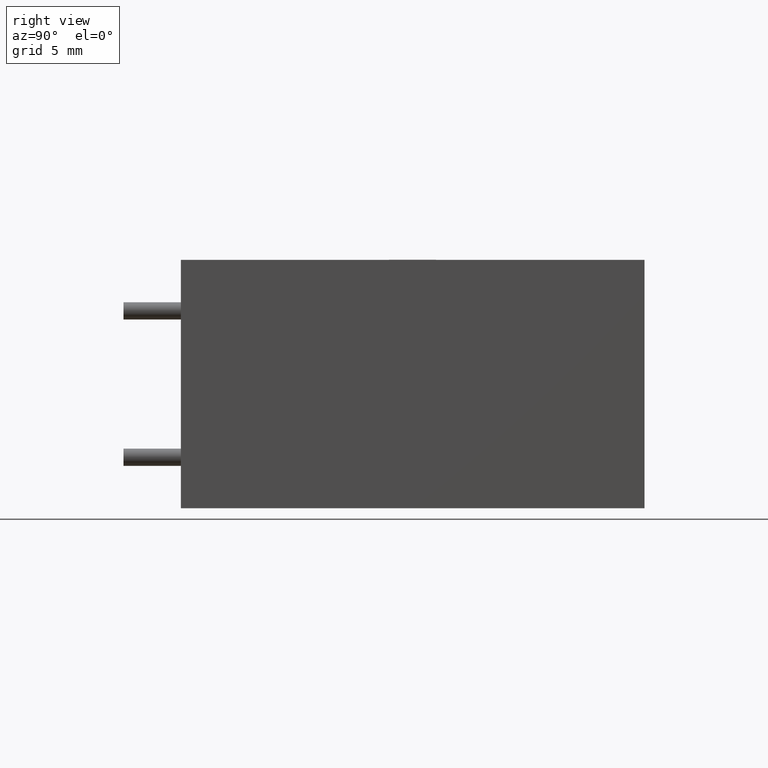
[diagram: clean part render]
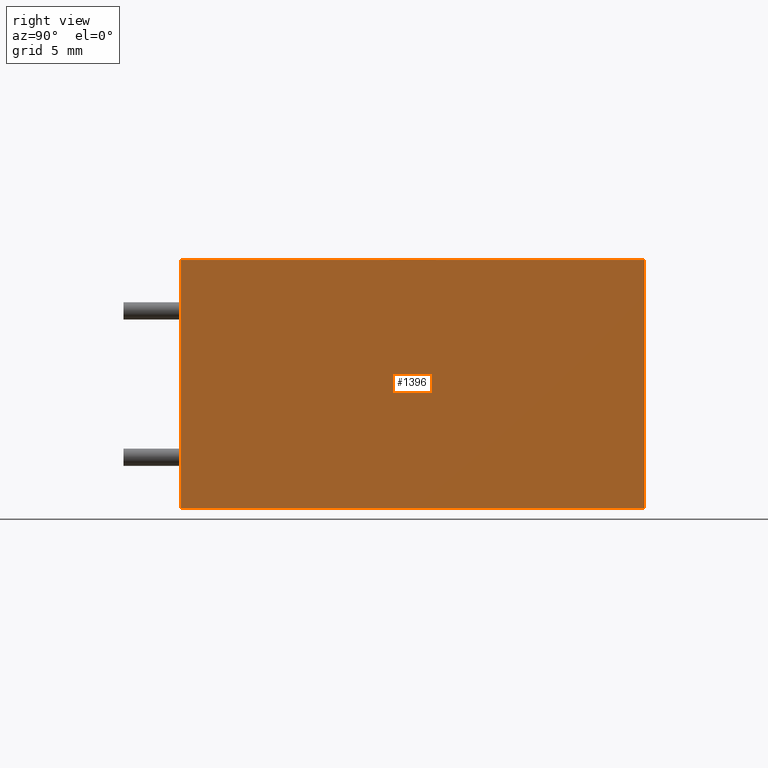
[diagram: same view with one face highlighted and labeled with its STEP entity id]
A machine part, right view. The second image highlights one B-rep face of the part: STEP entity #1396.
In plain terms, the highlighted planar face has unit normal (-1, 0, 0).
Its self-contained STEP definition (entity closure, byte-faithful):
#60 = CARTESIAN_POINT ( 'NONE',  ( 31.30000000000000071, 32.29999999999999716, 17.30000000000000071 ) ) ;
#85 = ORIENTED_EDGE ( 'NONE', *, *, #887, .F. ) ;
#172 = FACE_OUTER_BOUND ( 'NONE', #1900, .T. ) ;
#175 = CARTESIAN_POINT ( 'NONE',  ( 31.30000000000000071, 0.000000000000000000, 17.30000000000000071 ) ) ;
#425 = PLANE ( 'NONE',  #1970 ) ;
#474 = EDGE_CURVE ( 'NONE', #776, #884, #1594, .T. ) ;
#518 = ORIENTED_EDGE ( 'NONE', *, *, #2422, .T. ) ;
#614 = CARTESIAN_POINT ( 'NONE',  ( 31.30000000000000071, 0.000000000000000000, 17.30000000000000071 ) ) ;
#776 = VERTEX_POINT ( 'NONE', #175 ) ;
#884 = VERTEX_POINT ( 'NONE', #1276 ) ;
#887 = EDGE_CURVE ( 'NONE', #884, #1641, #2935, .T. ) ;
#1078 = DIRECTION ( 'NONE',  ( 0.000000000000000000, 1.000000000000000000, 0.000000000000000000 ) ) ;
#1085 = CARTESIAN_POINT ( 'NONE',  ( 31.30000000000000071, 0.000000000000000000, 0.000000000000000000 ) ) ;
#1113 = ORIENTED_EDGE ( 'NONE', *, *, #474, .F. ) ;
#1210 = VECTOR ( 'NONE', #2288, 1000.000000000000000 ) ;
#1276 = CARTESIAN_POINT ( 'NONE',  ( 31.30000000000000071, 32.29999999999999716, 17.30000000000000071 ) ) ;
#1356 = CARTESIAN_POINT ( 'NONE',  ( 31.30000000000000071, 0.000000000000000000, 17.30000000000000071 ) ) ;
#1396 = ADVANCED_FACE ( 'NONE', ( #172 ), #425, .F. ) ;
#1594 = LINE ( 'NONE', #1356, #2469 ) ;
#1641 = VERTEX_POINT ( 'NONE', #2909 ) ;
#1708 = DIRECTION ( 'NONE',  ( -0.000000000000000000, -0.000000000000000000, -1.000000000000000000 ) ) ;
#1810 = LINE ( 'NONE', #1085, #2055 ) ;
#1812 = LINE ( 'NONE', #614, #1210 ) ;
#1827 = DIRECTION ( 'NONE',  ( 0.000000000000000000, 1.000000000000000000, 0.000000000000000000 ) ) ;
#1828 = CARTESIAN_POINT ( 'NONE',  ( 31.30000000000000071, 0.000000000000000000, 17.30000000000000071 ) ) ;
#1900 = EDGE_LOOP ( 'NONE', ( #1991, #85, #1113, #518 ) ) ;
#1970 = AXIS2_PLACEMENT_3D ( 'NONE', #1828, #2786, #3115 ) ;
#1991 = ORIENTED_EDGE ( 'NONE', *, *, #2947, .T. ) ;
#2055 = VECTOR ( 'NONE', #1827, 1000.000000000000000 ) ;
#2288 = DIRECTION ( 'NONE',  ( -0.000000000000000000, -0.000000000000000000, -1.000000000000000000 ) ) ;
#2422 = EDGE_CURVE ( 'NONE', #776, #2473, #1812, .T. ) ;
#2469 = VECTOR ( 'NONE', #1078, 1000.000000000000000 ) ;
#2473 = VERTEX_POINT ( 'NONE', #2742 ) ;
#2742 = CARTESIAN_POINT ( 'NONE',  ( 31.30000000000000071, 0.000000000000000000, 0.000000000000000000 ) ) ;
#2786 = DIRECTION ( 'NONE',  ( -1.000000000000000000, 0.000000000000000000, 0.000000000000000000 ) ) ;
#2909 = CARTESIAN_POINT ( 'NONE',  ( 31.30000000000000071, 32.29999999999999716, 0.000000000000000000 ) ) ;
#2935 = LINE ( 'NONE', #60, #2992 ) ;
#2947 = EDGE_CURVE ( 'NONE', #2473, #1641, #1810, .T. ) ;
#2992 = VECTOR ( 'NONE', #1708, 1000.000000000000000 ) ;
#3115 = DIRECTION ( 'NONE',  ( 0.000000000000000000, 0.000000000000000000, 1.000000000000000000 ) ) ;